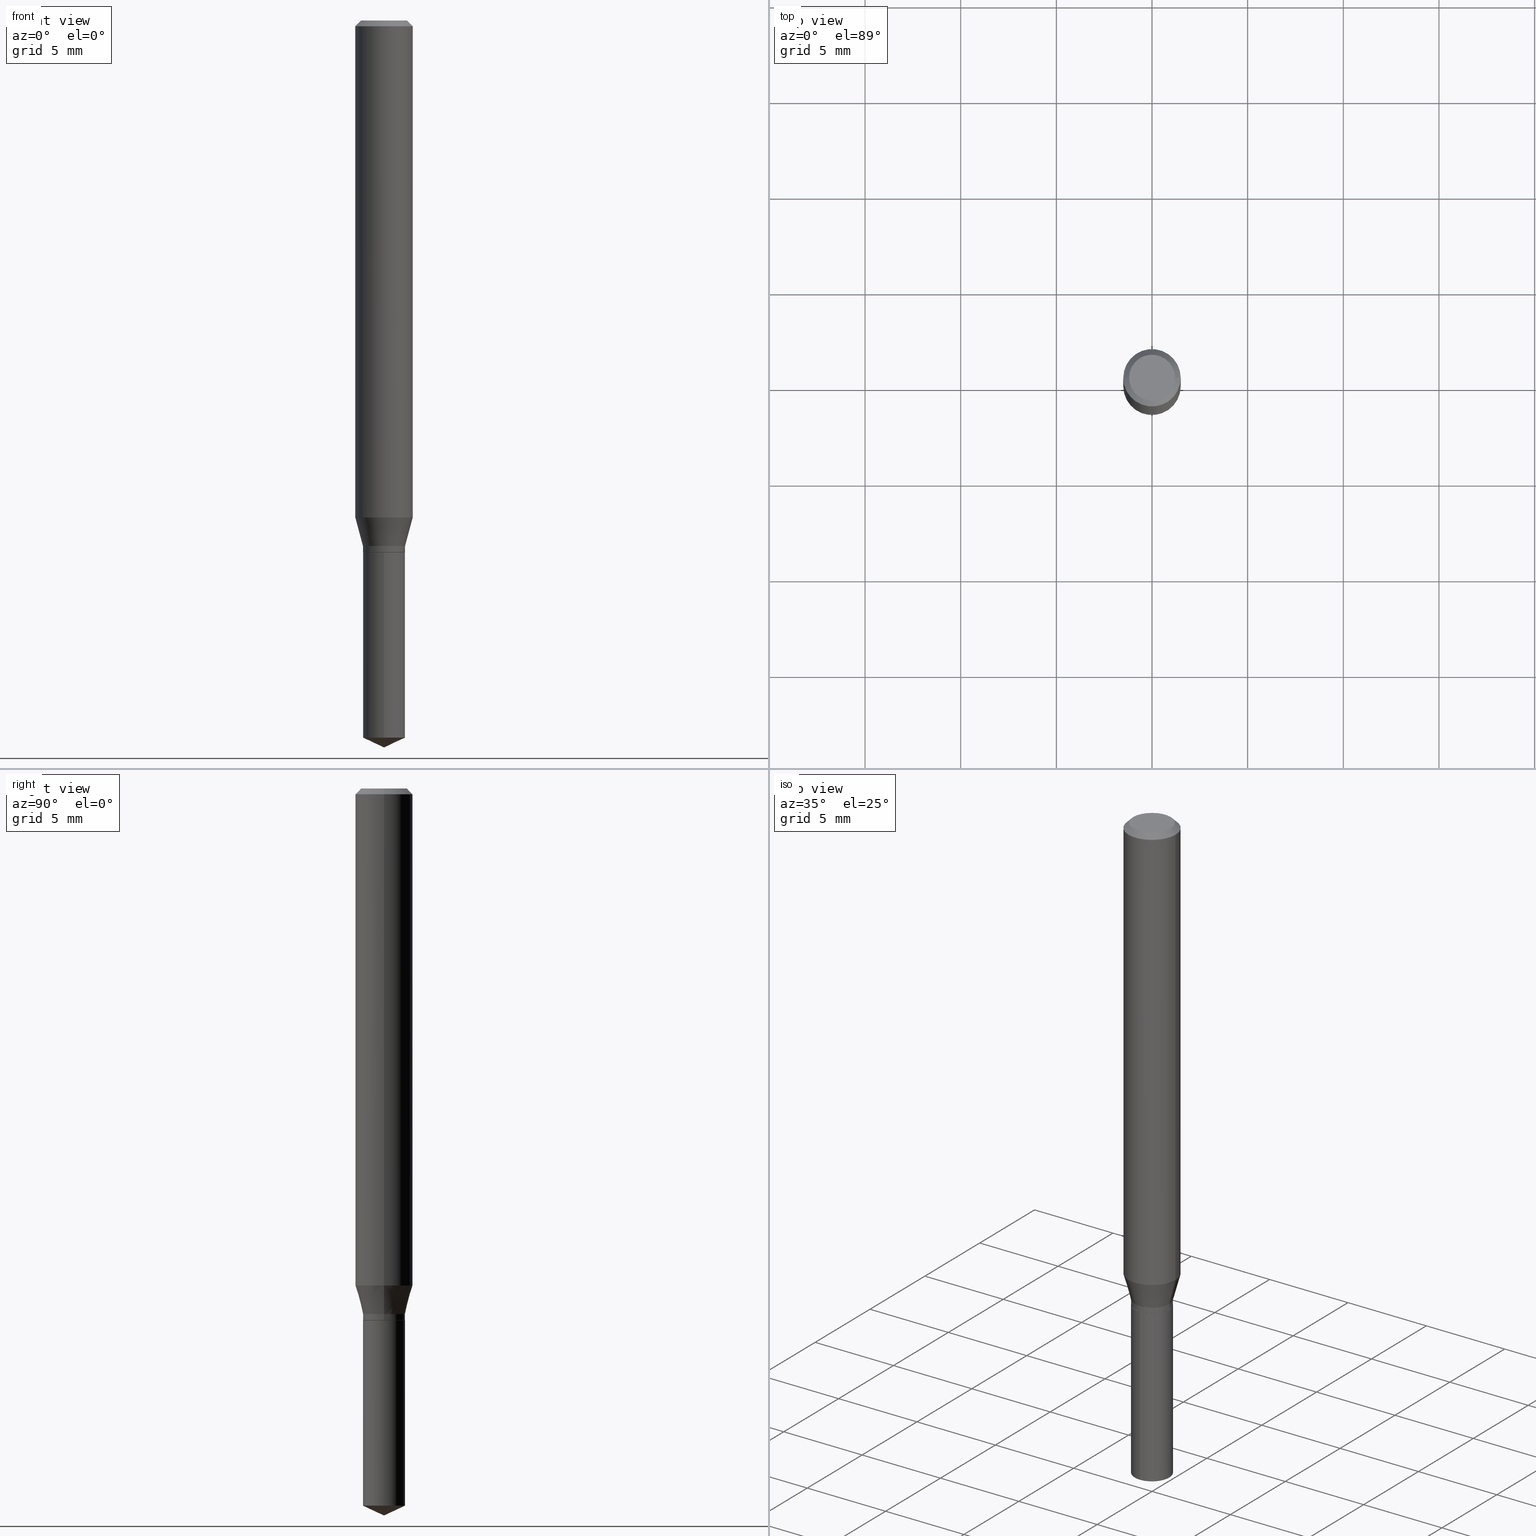
[diagram: canonical four-view strip — front | top / right | iso, engineering-drawing reading convention]
A machine part, canonical four-view strip (front | top / right | iso — engineering-drawing reading convention). The complete STEP part file that produces these views, byte-faithful:
ISO-10303-21;
HEADER;
FILE_DESCRIPTION (( 'STEP AP203' ),
    '1' );
FILE_NAME ('07968.STEP',
    '2024-04-24T07:32:38',
    ( '' ),
    ( '' ),
    'SwSTEP 2.0',
    'SolidWorks 2023',
    '' );
FILE_SCHEMA (( 'CONFIG_CONTROL_DESIGN' ));
ENDSEC;

DATA;
#1 = ORIENTED_EDGE ( 'NONE', *, *, #19, .T. ) ;
#2 = FACE_OUTER_BOUND ( 'NONE', #75, .T. ) ;
#3 = AXIS2_PLACEMENT_3D ( 'NONE', #193, #120, #89 ) ;
#4 = CARTESIAN_POINT ( 'NONE',  ( 0.000000000000000000, 0.000000000000000000, 0.000000000000000000 ) ) ;
#5 = PERSON_AND_ORGANIZATION ( #371, #475 ) ;
#6 = CC_DESIGN_PERSON_AND_ORGANIZATION_ASSIGNMENT ( #81, #344, ( #136 ) ) ;
#7 = FACE_OUTER_BOUND ( 'NONE', #115, .T. ) ;
#8 = SHAPE_DEFINITION_REPRESENTATION ( #88, #472 ) ;
#9 = DIRECTION ( 'NONE',  ( -1.000000000000000000, 6.982962677686265922E-15, -4.876176775795935793E-29 ) ) ;
#10 = CARTESIAN_POINT ( 'NONE',  ( 0.04329999999999999127, -4.078399351902677565E-15, -1.081499999999999906 ) ) ;
#11 = DATE_AND_TIME ( #259, #146 ) ;
#12 = EDGE_CURVE ( 'NONE', #108, #65, #156, .T. ) ;
#13 = DIRECTION ( 'NONE',  ( -2.445458899330790108E-29, 3.491495526022433205E-15, 1.000000000000000000 ) ) ;
#14 = SECURITY_CLASSIFICATION_LEVEL ( 'unclassified' ) ;
#15 = CARTESIAN_POINT ( 'NONE',  ( -0.05904999999999999832, 3.711095515056362547E-16, -0.01181000000000007565 ) ) ;
#16 = DIRECTION ( 'NONE',  ( 1.000000000000000000, -6.982962677686269077E-15, 0.000000000000000000 ) ) ;
#17 = APPROVAL_ROLE ( '' ) ;
#18 = CARTESIAN_POINT ( 'NONE',  ( -3.023622839437885423E-16, -0.04330000000000382154, -1.094499999999999806 ) ) ;
#19 = EDGE_CURVE ( 'NONE', #362, #300, #124, .T. ) ;
#20 = DIRECTION ( 'NONE',  ( -2.438088387897960049E-29, 3.491481338843145188E-15, 1.000000000000000000 ) ) ;
#21 = AXIS2_PLACEMENT_3D ( 'NONE', #36, #155, #122 ) ;
#22 = CIRCLE ( 'NONE', #94, 0.05905000000000013016 ) ;
#23 = LINE ( 'NONE', #316, #113 ) ;
#24 = VERTEX_POINT ( 'NONE', #10 ) ;
#25 = DIRECTION ( 'NONE',  ( -2.445458899330790108E-29, 3.491495526022433599E-15, 1.000000000000000000 ) ) ;
#26 = EDGE_CURVE ( 'NONE', #435, #177, #450, .T. ) ;
#27 = ORIENTED_EDGE ( 'NONE', *, *, #342, .T. ) ;
#28 = AXIS2_PLACEMENT_3D ( 'NONE', #123, #262, #48 ) ;
#29 = DIRECTION ( 'NONE',  ( -2.445468806185136877E-29, 3.491481338843145188E-15, 1.000000000000000000 ) ) ;
#30 = ORIENTED_EDGE ( 'NONE', *, *, #252, .T. ) ;
#31 = ORIENTED_EDGE ( 'NONE', *, *, #267, .T. ) ;
#32 = ORIENTED_EDGE ( 'NONE', *, *, #305, .T. ) ;
#33 = VECTOR ( 'NONE', #29, 39.37007874015748143 ) ;
#34 = ORIENTED_EDGE ( 'NONE', *, *, #12, .F. ) ;
#35 = ORIENTED_EDGE ( 'NONE', *, *, #196, .F. ) ;
#36 = CARTESIAN_POINT ( 'NONE',  ( -9.261924752013118283E-28, 1.322368428517963298E-13, 37.87397874015748300 ) ) ;
#37 = COORDINATED_UNIVERSAL_TIME_OFFSET ( 5, 0, .BEHIND. ) ;
#38 = APPROVAL ( #270, 'UNSPECIFIED' ) ;
#39 = CARTESIAN_POINT ( 'NONE',  ( 3.076650045841500411E-16, 0.04329999999999616794, -1.094500000000000028 ) ) ;
#40 = CONICAL_SURFACE ( 'NONE', #21, 84.42940631927434936, 1.134464013796316006 ) ;
#41 = CIRCLE ( 'NONE', #359, 0.04724000000000000421 ) ;
#42 = DIRECTION ( 'NONE',  ( -6.982962677686265922E-15, -1.000000000000000000, 6.309117768277745325E-15 ) ) ;
#43 = DIRECTION ( 'NONE',  ( -1.000000000000000000, 6.982962677686266711E-15, 0.000000000000000000 ) ) ;
#44 = COORDINATED_UNIVERSAL_TIME_OFFSET ( 5, 0, .BEHIND. ) ;
#45 = ADVANCED_FACE ( 'NONE', ( #200 ), #437, .T. ) ;
#46 = ORIENTED_EDGE ( 'NONE', *, *, #267, .F. ) ;
#47 = DATE_AND_TIME ( #234, #74 ) ;
#48 = DIRECTION ( 'NONE',  ( -1.000000000000000000, 6.982962677686266711E-15, 0.000000000000000000 ) ) ;
#49 = DIRECTION ( 'NONE',  ( 1.000000000000000000, -6.982962677686269866E-15, 0.000000000000000000 ) ) ;
#50 = AXIS2_PLACEMENT_3D ( 'NONE', #357, #469, #49 ) ;
#51 = LINE ( 'NONE', #105, #151 ) ;
#52 = CYLINDRICAL_SURFACE ( 'NONE', #430, 0.04329999999999999127 ) ;
#53 = FACE_OUTER_BOUND ( 'NONE', #317, .T. ) ;
#54 = ADVANCED_FACE ( 'NONE', ( #260 ), #197, .T. ) ;
#55 = ORIENTED_EDGE ( 'NONE', *, *, #434, .F. ) ;
#56 = DIRECTION ( 'NONE',  ( -6.982962677686265922E-15, -1.000000000000000000, 3.154558884138872662E-15 ) ) ;
#57 = PLANE ( 'NONE',  #82 ) ;
#58 = ORIENTED_EDGE ( 'NONE', *, *, #329, .F. ) ;
#59 = DIRECTION ( 'NONE',  ( 0.000000000000000000, 0.000000000000000000, 1.000000000000000000 ) ) ;
#60 = CARTESIAN_POINT ( 'NONE',  ( 0.05905000000000013016, -3.983152438509936021E-15, -1.022720199780789763 ) ) ;
#61 = CIRCLE ( 'NONE', #319, 0.05905000000000013016 ) ;
#62 = VECTOR ( 'NONE', #416, 39.37007874015748854 ) ;
#63 = DIRECTION ( 'NONE',  ( 1.000000000000000000, -6.982962677686269866E-15, 0.000000000000000000 ) ) ;
#64 = ADVANCED_FACE ( 'NONE', ( #84 ), #229, .T. ) ;
#65 = VERTEX_POINT ( 'NONE', #306 ) ;
#66 = APPROVAL_PERSON_ORGANIZATION ( #337, #288, #17 ) ;
#67 = ORIENTED_EDGE ( 'NONE', *, *, #394, .T. ) ;
#68 = CC_DESIGN_PERSON_AND_ORGANIZATION_ASSIGNMENT ( #5, #227, ( #176 ) ) ;
#69 = ORIENTED_EDGE ( 'NONE', *, *, #406, .F. ) ;
#70 = CARTESIAN_POINT ( 'NONE',  ( 3.658672935554494692E-29, -5.223595400746700193E-15, -1.496099999999999985 ) ) ;
#71 = ORIENTED_EDGE ( 'NONE', *, *, #186, .F. ) ;
#72 = AXIS2_PLACEMENT_3D ( 'NONE', #4, #162, #377 ) ;
#73 = CONICAL_SURFACE ( 'NONE', #347, 0.05904999999999999832, 0.7853981633974450594 ) ;
#74 = LOCAL_TIME ( 3, 32, 38.00000000000000000, #167 ) ;
#75 = EDGE_LOOP ( 'NONE', ( #248, #413, #490, #404 ) ) ;
#76 = ADVANCED_FACE ( 'NONE', ( #334 ), #73, .T. ) ;
#77 = CARTESIAN_POINT ( 'NONE',  ( 0.000000000000000000, 0.000000000000000000, 0.000000000000000000 ) ) ;
#78 = CALENDAR_DATE ( 2024, 24, 4 ) ;
#79 = DESIGN_CONTEXT ( 'detailed design', #323, 'design' ) ;
#80 = CARTESIAN_POINT ( 'NONE',  ( 3.609285344341305369E-29, -5.153113717889251139E-15, -1.475908878401888558 ) ) ;
#81 = PERSON_AND_ORGANIZATION ( #371, #475 ) ;
#82 = AXIS2_PLACEMENT_3D ( 'NONE', #209, #20, #214 ) ;
#83 = CC_DESIGN_APPROVAL ( #38, ( #136 ) ) ;
#84 = FACE_OUTER_BOUND ( 'NONE', #110, .T. ) ;
#85 = COORDINATED_UNIVERSAL_TIME_OFFSET ( 5, 0, .BEHIND. ) ;
#86 = DIRECTION ( 'NONE',  ( 6.982962677686265922E-15, 1.000000000000000000, -3.491495526022433599E-15 ) ) ;
#87 = LINE ( 'NONE', #298, #297 ) ;
#88 = PRODUCT_DEFINITION_SHAPE ( 'NONE', 'NONE',  #136 ) ;
#89 = DIRECTION ( 'NONE',  ( 1.000000000000000000, -6.982962677686269077E-15, 0.000000000000000000 ) ) ;
#90 = PERSON_AND_ORGANIZATION ( #371, #475 ) ;
#91 = DIRECTION ( 'NONE',  ( 1.000000000000000000, -6.982962677686269077E-15, 0.000000000000000000 ) ) ;
#92 = DIRECTION ( 'NONE',  ( -2.445458899330790108E-29, 3.491495526022433205E-15, 1.000000000000000000 ) ) ;
#93 = FACE_OUTER_BOUND ( 'NONE', #233, .T. ) ;
#94 = AXIS2_PLACEMENT_3D ( 'NONE', #432, #240, #280 ) ;
#95 = LINE ( 'NONE', #352, #249 ) ;
#96 = APPROVAL_PERSON_ORGANIZATION ( #225, #383, #310 ) ;
#97 =( LENGTH_UNIT ( ) NAMED_UNIT ( * ) SI_UNIT ( $, .METRE. ) );
#98 = CARTESIAN_POINT ( 'NONE',  ( 3.609285344341305369E-29, -5.153113717889251139E-15, -1.475908878401888558 ) ) ;
#99 = ADVANCED_FACE ( 'NONE', ( #2 ), #273, .T. ) ;
#100 = DIRECTION ( 'NONE',  ( -2.445468806185136877E-29, 3.491481338843145188E-15, 1.000000000000000000 ) ) ;
#101 =( CONVERSION_BASED_UNIT ( 'INCH', #441 ) LENGTH_UNIT ( ) NAMED_UNIT ( #486 ) );
#102 = APPLICATION_CONTEXT ( 'configuration controlled 3d designs of mechanical parts and assemblies' ) ;
#103 = DIRECTION ( 'NONE',  ( 1.000000000000000000, -6.982962677686269866E-15, 0.000000000000000000 ) ) ;
#104 = ORIENTED_EDGE ( 'NONE', *, *, #434, .T. ) ;
#105 = CARTESIAN_POINT ( 'NONE',  ( -0.04279999999999998389, -3.517314034458499860E-15, -1.094500000000000028 ) ) ;
#106 = AXIS2_PLACEMENT_3D ( 'NONE', #461, #264, #312 ) ;
#107 = ADVANCED_FACE ( 'NONE', ( #7 ), #128, .T. ) ;
#108 = VERTEX_POINT ( 'NONE', #422 ) ;
#109 = MANIFOLD_SOLID_BREP ( 'Body-Move/Copy2[2]', #182 ) ;
#110 = EDGE_LOOP ( 'NONE', ( #35, #322, #152, #449 ) ) ;
#111 = ADVANCED_FACE ( 'NONE', ( #296 ), #40, .T. ) ;
#112 = EDGE_LOOP ( 'NONE', ( #442, #191, #208 ) ) ;
#113 = VECTOR ( 'NONE', #278, 39.37007874015748143 ) ;
#114 = DIRECTION ( 'NONE',  ( -2.445468806185136597E-29, 3.491481338843145583E-15, 1.000000000000000000 ) ) ;
#115 = EDGE_LOOP ( 'NONE', ( #407, #485, #254, #58 ) ) ;
#116 = EDGE_LOOP ( 'NONE', ( #474, #483 ) ) ;
#117 = ORIENTED_EDGE ( 'NONE', *, *, #342, .F. ) ;
#118 = CIRCLE ( 'NONE', #366, 0.05904999999999999832 ) ;
#119 = CC_DESIGN_PERSON_AND_ORGANIZATION_ASSIGNMENT ( #129, #415, ( #295 ) ) ;
#120 = DIRECTION ( 'NONE',  ( -2.445468806185136597E-29, 3.491481338843145583E-15, 1.000000000000000000 ) ) ;
#121 = CARTESIAN_POINT ( 'NONE',  ( 3.076650045841594582E-16, 0.04329999999999616794, -1.094500000000000028 ) ) ;
#122 = DIRECTION ( 'NONE',  ( -6.982962677686266711E-15, -1.000000000000000000, 3.520397390770453475E-15 ) ) ;
#123 = CARTESIAN_POINT ( 'NONE',  ( 2.888098660104664642E-31, -4.123439461173780879E-17, -0.01181000000000007565 ) ) ;
#124 = LINE ( 'NONE', #418, #372 ) ;
#125 = PERSON_AND_ORGANIZATION ( #371, #475 ) ;
#126 = FACE_OUTER_BOUND ( 'NONE', #365, .T. ) ;
#127 = AXIS2_PLACEMENT_3D ( 'NONE', #77, #378, #168 ) ;
#128 = CYLINDRICAL_SURFACE ( 'NONE', #194, 0.04329999999999999127 ) ;
#129 = PERSON_AND_ORGANIZATION ( #371, #475 ) ;
#130 = FACE_OUTER_BOUND ( 'NONE', #243, .T. ) ;
#131 = VERTEX_POINT ( 'NONE', #380 ) ;
#132 = APPROVAL_ROLE ( '' ) ;
#133 = DIRECTION ( 'NONE',  ( -2.445468806185136597E-29, 3.491481338843145583E-15, 1.000000000000000000 ) ) ;
#134 = ORIENTED_EDGE ( 'NONE', *, *, #203, .T. ) ;
#135 = DIRECTION ( 'NONE',  ( 1.000000000000000000, -6.982962677686266711E-15, 0.000000000000000000 ) ) ;
#136 = PRODUCT_DEFINITION ( 'UNKNOWN', '', #176, #79 ) ;
#137 = AXIS2_PLACEMENT_3D ( 'NONE', #396, #395, #283 ) ;
#138 = CARTESIAN_POINT ( 'NONE',  ( 2.676565608369632355E-29, -3.821426325363822773E-15, -1.094500000000000028 ) ) ;
#139 = VERTEX_POINT ( 'NONE', #453 ) ;
#140 = DIRECTION ( 'NONE',  ( -2.445468806185136597E-29, 3.491481338843145583E-15, 1.000000000000000000 ) ) ;
#141 = ORIENTED_EDGE ( 'NONE', *, *, #363, .T. ) ;
#142 = CARTESIAN_POINT ( 'NONE',  ( 0.05904999999999999832, -4.463468013801466955E-16, -0.01181000000000007565 ) ) ;
#143 = EDGE_CURVE ( 'NONE', #370, #131, #318, .T. ) ;
#144 = DIRECTION ( 'NONE',  ( -2.445468806185136597E-29, 3.491481338843145583E-15, 1.000000000000000000 ) ) ;
#145 = AXIS2_PLACEMENT_3D ( 'NONE', #364, #144, #242 ) ;
#146 = LOCAL_TIME ( 3, 32, 38.00000000000000000, #37 ) ;
#147 = ORIENTED_EDGE ( 'NONE', *, *, #186, .T. ) ;
#148 = ORIENTED_EDGE ( 'NONE', *, *, #203, .F. ) ;
#149 = CARTESIAN_POINT ( 'NONE',  ( 2.675342873966538993E-29, -3.819680584694400481E-15, -1.093999999999999861 ) ) ;
#150 = ORIENTED_EDGE ( 'NONE', *, *, #335, .F. ) ;
#151 = VECTOR ( 'NONE', #402, 39.37007874015748854 ) ;
#152 = ORIENTED_EDGE ( 'NONE', *, *, #335, .T. ) ;
#153 = EDGE_LOOP ( 'NONE', ( #217, #446 ) ) ;
#154 = ADVANCED_FACE ( 'NONE', ( #387 ), #345, .T. ) ;
#155 = DIRECTION ( 'NONE',  ( -2.445458899330790108E-29, 3.491495526022433205E-15, 1.000000000000000000 ) ) ;
#156 = CIRCLE ( 'NONE', #281, 0.05904999999999999832 ) ;
#157 = CARTESIAN_POINT ( 'NONE',  ( 2.644774513889225122E-29, -3.776037067958862103E-15, -1.081499999999999906 ) ) ;
#158 = PERSON_AND_ORGANIZATION_ROLE ( 'classification_officer' ) ;
#159 = ADVANCED_FACE ( 'NONE', ( #466 ), #414, .T. ) ;
#160 = EDGE_LOOP ( 'NONE', ( #46, #180, #104, #328 ) ) ;
#161 = DIRECTION ( 'NONE',  ( -2.445458899330790108E-29, 3.491495526022433205E-15, 1.000000000000000000 ) ) ;
#162 = DIRECTION ( 'NONE',  ( -2.445468806185136597E-29, 3.491481338843145583E-15, 1.000000000000000000 ) ) ;
#163 = FACE_OUTER_BOUND ( 'NONE', #153, .T. ) ;
#164 = AXIS2_PLACEMENT_3D ( 'NONE', #80, #92, #42 ) ;
#165 = VECTOR ( 'NONE', #457, 39.37007874015748854 ) ;
#166 = CARTESIAN_POINT ( 'NONE',  ( 0.000000000000000000, 0.000000000000000000, 0.000000000000000000 ) ) ;
#167 = COORDINATED_UNIVERSAL_TIME_OFFSET ( 5, 0, .BEHIND. ) ;
#168 = DIRECTION ( 'NONE',  ( 1.000000000000000000, -6.982962677686266711E-15, 4.876176775795936353E-29 ) ) ;
#169 = DATE_AND_TIME ( #78, #351 ) ;
#170 = LINE ( 'NONE', #311, #165 ) ;
#171 = EDGE_CURVE ( 'NONE', #250, #285, #61, .T. ) ;
#172 = CARTESIAN_POINT ( 'NONE',  ( -0.05905000000000006771, 4.195754854663396409E-16, -2.904631170795525045E-30 ) ) ;
#173 = AXIS2_PLACEMENT_3D ( 'NONE', #343, #336, #456 ) ;
#174 = CIRCLE ( 'NONE', #392, 0.04329999999999999127 ) ;
#175 = CARTESIAN_POINT ( 'NONE',  ( 8.265746106709734507E-48, -1.180129479067563789E-33, -3.380025165646692144E-19 ) ) ;
#176 = PRODUCT_DEFINITION_FORMATION_WITH_SPECIFIED_SOURCE ( 'ANY', '', #295, .NOT_KNOWN. ) ;
#177 = VERTEX_POINT ( 'NONE', #428 ) ;
#178 =( NAMED_UNIT ( * ) SI_UNIT ( $, .STERADIAN. ) SOLID_ANGLE_UNIT ( ) );
#179 = DIRECTION ( 'NONE',  ( -2.445468806185136597E-29, 3.491481338843145583E-15, 1.000000000000000000 ) ) ;
#180 = ORIENTED_EDGE ( 'NONE', *, *, #190, .F. ) ;
#181 = CARTESIAN_POINT ( 'NONE',  ( 0.05905000000000006771, -4.123439461173745257E-16, 2.879382386107503723E-30 ) ) ;
#182 = CLOSED_SHELL ( 'NONE', ( #241, #482, #159, #45, #54, #154, #99, #64, #76, #368, #299, #468 ) ) ;
#183 = AXIS2_PLACEMENT_3D ( 'NONE', #207, #237, #63 ) ;
#184 = VERTEX_POINT ( 'NONE', #18 ) ;
#185 = ORIENTED_EDGE ( 'NONE', *, *, #363, .F. ) ;
#186 = EDGE_CURVE ( 'NONE', #131, #370, #228, .T. ) ;
#187 = EDGE_LOOP ( 'NONE', ( #219, #440, #290 ) ) ;
#188 = ORIENTED_EDGE ( 'NONE', *, *, #376, .F. ) ;
#189 = APPROVAL_PERSON_ORGANIZATION ( #90, #38, #132 ) ;
#190 = EDGE_CURVE ( 'NONE', #367, #481, #41, .T. ) ;
#191 = ORIENTED_EDGE ( 'NONE', *, *, #410, .T. ) ;
#192 = CARTESIAN_POINT ( 'NONE',  ( 2.888098660104664642E-31, -4.123439461173780879E-17, -0.01181000000000007565 ) ) ;
#193 = CARTESIAN_POINT ( 'NONE',  ( 2.676565608369632355E-29, -3.821426325363822773E-15, -1.094500000000000028 ) ) ;
#194 = AXIS2_PLACEMENT_3D ( 'NONE', #224, #13, #265 ) ;
#195 = DIRECTION ( 'NONE',  ( -2.445458899330790108E-29, 3.491495526022433599E-15, 1.000000000000000000 ) ) ;
#196 = EDGE_CURVE ( 'NONE', #250, #65, #324, .T. ) ;
#197 = CYLINDRICAL_SURFACE ( 'NONE', #173, 0.04329999999999999127 ) ;
#198 = DATE_AND_TIME ( #301, #360 ) ;
#199 = CARTESIAN_POINT ( 'NONE',  ( 2.644774513889225122E-29, -3.776037067958862103E-15, -1.081499999999999906 ) ) ;
#200 = FACE_OUTER_BOUND ( 'NONE', #287, .T. ) ;
#201 = DATE_AND_TIME ( #388, #291 ) ;
#202 = AXIS2_PLACEMENT_3D ( 'NONE', #386, #431, #9 ) ;
#203 = EDGE_CURVE ( 'NONE', #294, #24, #95, .T. ) ;
#204 = CARTESIAN_POINT ( 'NONE',  ( -3.023622839437885423E-16, -0.04330000000000382154, -1.094499999999999806 ) ) ;
#205 = APPROVAL_DATE_TIME ( #198, #383 ) ;
#206 = CARTESIAN_POINT ( 'NONE',  ( 2.676565608369632355E-29, -3.821426325363822773E-15, -1.094500000000000028 ) ) ;
#207 = CARTESIAN_POINT ( 'NONE',  ( 2.644774513889225122E-29, -3.776037067958862103E-15, -1.081499999999999906 ) ) ;
#208 = ORIENTED_EDGE ( 'NONE', *, *, #26, .F. ) ;
#209 = CARTESIAN_POINT ( 'NONE',  ( 2.374170476497901664E-30, -7.314425892029170306E-15, -1.094500000000000028 ) ) ;
#210 = DIRECTION ( 'NONE',  ( 1.000000000000000000, 0.000000000000000000, 0.000000000000000000 ) ) ;
#211 = PRODUCT_RELATED_PRODUCT_CATEGORY ( 'detail', '', ( #295 ) ) ;
#212 = AXIS2_PLACEMENT_3D ( 'NONE', #199, #226, #303 ) ;
#213 = CIRCLE ( 'NONE', #308, 0.04329999999999999127 ) ;
#214 = DIRECTION ( 'NONE',  ( 1.000000000000000000, -6.982962677686265922E-15, 4.876176775795935793E-29 ) ) ;
#215 = LINE ( 'NONE', #204, #326 ) ;
#216 = EDGE_CURVE ( 'NONE', #139, #435, #23, .T. ) ;
#217 = ORIENTED_EDGE ( 'NONE', *, *, #400, .T. ) ;
#218 = EDGE_LOOP ( 'NONE', ( #251, #32, #185, #429 ) ) ;
#219 = ORIENTED_EDGE ( 'NONE', *, *, #410, .F. ) ;
#220 = DIRECTION ( 'NONE',  ( 1.000000000000000000, -6.982962677686269866E-15, 0.000000000000000000 ) ) ;
#221 = ORIENTED_EDGE ( 'NONE', *, *, #143, .F. ) ;
#222 = CIRCLE ( 'NONE', #282, 0.04329999999999999127 ) ;
#223 = ORIENTED_EDGE ( 'NONE', *, *, #247, .T. ) ;
#224 = CARTESIAN_POINT ( 'NONE',  ( 2.676565608369631794E-29, -3.821426325363822773E-15, -1.094499999999999806 ) ) ;
#225 = PERSON_AND_ORGANIZATION ( #371, #475 ) ;
#226 = DIRECTION ( 'NONE',  ( -2.445468806185136597E-29, 3.491481338843145583E-15, 1.000000000000000000 ) ) ;
#227 = PERSON_AND_ORGANIZATION_ROLE ( 'design_supplier' ) ;
#228 = CIRCLE ( 'NONE', #350, 0.04279999999999998389 ) ;
#229 = CYLINDRICAL_SURFACE ( 'NONE', #72, 0.05905000000000006771 ) ;
#230 = APPROVAL_DATE_TIME ( #169, #38 ) ;
#231 = DIRECTION ( 'NONE',  ( -2.445458899330790108E-29, 3.491495526022433205E-15, 1.000000000000000000 ) ) ;
#232 = CARTESIAN_POINT ( 'NONE',  ( -0.04329999999999999127, -3.490193821742507875E-15, -1.093999999999999861 ) ) ;
#233 = EDGE_LOOP ( 'NONE', ( #397, #31, #279, #55 ) ) ;
#234 = CALENDAR_DATE ( 2024, 24, 4 ) ;
#235 = CARTESIAN_POINT ( 'NONE',  ( 0.04279999999999998389, -4.120297127968795228E-15, -1.094500000000000028 ) ) ;
#236 = EDGE_CURVE ( 'NONE', #481, #367, #412, .T. ) ;
#237 = DIRECTION ( 'NONE',  ( -2.445468806185136597E-29, 3.491481338843145583E-15, 1.000000000000000000 ) ) ;
#238 = CONICAL_SURFACE ( 'NONE', #28, 0.05904999999999999832, 0.7853981633974450594 ) ;
#239 = DIRECTION ( 'NONE',  ( -2.445468806185136597E-29, 3.491481338843145583E-15, 1.000000000000000000 ) ) ;
#240 = DIRECTION ( 'NONE',  ( -2.445468806185136597E-29, 3.491481338843145583E-15, 1.000000000000000000 ) ) ;
#241 = ADVANCED_FACE ( 'NONE', ( #473 ), #463, .T. ) ;
#242 = DIRECTION ( 'NONE',  ( 1.000000000000000000, -6.982962677686266711E-15, 4.876185090822587894E-29 ) ) ;
#243 = EDGE_LOOP ( 'NONE', ( #403, #67, #253, #188 ) ) ;
#244 = CLOSED_SHELL ( 'NONE', ( #107, #111, #284, #448, #427 ) ) ;
#245 = VECTOR ( 'NONE', #272, 39.37007874015748143 ) ;
#246 = DIRECTION ( 'NONE',  ( 1.000000000000000000, -6.982962677686265133E-15, 0.000000000000000000 ) ) ;
#247 = EDGE_CURVE ( 'NONE', #300, #250, #470, .T. ) ;
#248 = ORIENTED_EDGE ( 'NONE', *, *, #247, .F. ) ;
#249 = VECTOR ( 'NONE', #100, 39.37007874015748143 ) ;
#250 = VERTEX_POINT ( 'NONE', #320 ) ;
#251 = ORIENTED_EDGE ( 'NONE', *, *, #143, .T. ) ;
#252 = EDGE_CURVE ( 'NONE', #24, #300, #174, .T. ) ;
#253 = ORIENTED_EDGE ( 'NONE', *, *, #329, .T. ) ;
#254 = ORIENTED_EDGE ( 'NONE', *, *, #400, .F. ) ;
#255 = AXIS2_PLACEMENT_3D ( 'NONE', #206, #271, #91 ) ;
#256 = DIRECTION ( 'NONE',  ( 1.000000000000000000, -6.982962677686267499E-15, 4.876176775795936353E-29 ) ) ;
#257 = CC_DESIGN_PERSON_AND_ORGANIZATION_ASSIGNMENT ( #423, #158, ( #452 ) ) ;
#258 = DIRECTION ( 'NONE',  ( -2.445468806185136597E-29, 3.491481338843145583E-15, 1.000000000000000000 ) ) ;
#259 = CALENDAR_DATE ( 2024, 24, 4 ) ;
#260 = FACE_OUTER_BOUND ( 'NONE', #447, .T. ) ;
#261 = PERSON_AND_ORGANIZATION_ROLE ( 'creator' ) ;
#262 = DIRECTION ( 'NONE',  ( 2.445468806185136597E-29, -3.491481338843145583E-15, -1.000000000000000000 ) ) ;
#263 = CIRCLE ( 'NONE', #106, 0.04329999999999999127 ) ;
#264 = DIRECTION ( 'NONE',  ( -2.445458899330790108E-29, 3.491495526022433205E-15, 1.000000000000000000 ) ) ;
#265 = DIRECTION ( 'NONE',  ( -6.982962677686265922E-15, -1.000000000000000000, 3.154558884138872662E-15 ) ) ;
#266 = CARTESIAN_POINT ( 'NONE',  ( 2.676565608369631794E-29, -3.821426325363822773E-15, -1.094499999999999806 ) ) ;
#267 = EDGE_CURVE ( 'NONE', #481, #108, #478, .T. ) ;
#268 = DIRECTION ( 'NONE',  ( -2.445458899330790108E-29, 3.491495526022433205E-15, 1.000000000000000000 ) ) ;
#269 = DIRECTION ( 'NONE',  ( -2.445468806185136877E-29, 3.491481338843145188E-15, 1.000000000000000000 ) ) ;
#270 = APPROVAL_STATUS ( 'not_yet_approved' ) ;
#271 = DIRECTION ( 'NONE',  ( -2.445468806185136597E-29, 3.491481338843145583E-15, 1.000000000000000000 ) ) ;
#272 = DIRECTION ( 'NONE',  ( 0.7071067811865452413, -7.319954787623248157E-15, -0.7071067811865497932 ) ) ;
#273 = CONICAL_SURFACE ( 'NONE', #348, 0.04329999999999999127, 0.2617993877991497964 ) ;
#274 =( GEOMETRIC_REPRESENTATION_CONTEXT ( 3 ) GLOBAL_UNCERTAINTY_ASSIGNED_CONTEXT ( ( #314 ) ) GLOBAL_UNIT_ASSIGNED_CONTEXT ( ( #101, #355, #178 ) ) REPRESENTATION_CONTEXT ( 'NONE', 'WORKASPACE' ) );
#275 = CC_DESIGN_APPROVAL ( #383, ( #452 ) ) ;
#276 = EDGE_CURVE ( 'NONE', #285, #250, #22, .T. ) ;
#277 = CARTESIAN_POINT ( 'NONE',  ( 2.644774513889225122E-29, -3.776037067958862103E-15, -1.081499999999999906 ) ) ;
#278 = DIRECTION ( 'NONE',  ( -6.328713451373374901E-15, -0.9063077870366492705, 0.4226182617407009956 ) ) ;
#279 = ORIENTED_EDGE ( 'NONE', *, *, #12, .T. ) ;
#280 = DIRECTION ( 'NONE',  ( 1.000000000000000000, -6.982962677686265133E-15, 0.000000000000000000 ) ) ;
#281 = AXIS2_PLACEMENT_3D ( 'NONE', #192, #420, #459 ) ;
#282 = AXIS2_PLACEMENT_3D ( 'NONE', #149, #114, #220 ) ;
#283 = DIRECTION ( 'NONE',  ( -6.982962677686266711E-15, -1.000000000000000000, 3.520397390770453475E-15 ) ) ;
#284 = ADVANCED_FACE ( 'NONE', ( #433 ), #289, .T. ) ;
#285 = VERTEX_POINT ( 'NONE', #60 ) ;
#286 = APPLICATION_PROTOCOL_DEFINITION ( 'international standard', 'config_control_design', 1994, #102 ) ;
#287 = EDGE_LOOP ( 'NONE', ( #30, #223, #374, #69 ) ) ;
#288 = APPROVAL ( #419, 'UNSPECIFIED' ) ;
#289 = CONICAL_SURFACE ( 'NONE', #137, 84.42940631927434936, 1.134464013796316006 ) ;
#290 = ORIENTED_EDGE ( 'NONE', *, *, #394, .F. ) ;
#291 = LOCAL_TIME ( 3, 32, 38.00000000000000000, #44 ) ;
#292 = LINE ( 'NONE', #39, #331 ) ;
#293 = ORIENTED_EDGE ( 'NONE', *, *, #276, .T. ) ;
#294 = VERTEX_POINT ( 'NONE', #439 ) ;
#295 = PRODUCT ( '07968', '07968', '', ( #443 ) ) ;
#296 = FACE_OUTER_BOUND ( 'NONE', #112, .T. ) ;
#297 = VECTOR ( 'NONE', #454, 39.37007874015748143 ) ;
#298 = CARTESIAN_POINT ( 'NONE',  ( 0.04329999999999999127, -4.078399351902677565E-15, -1.081499999999999906 ) ) ;
#299 = ADVANCED_FACE ( 'NONE', ( #53 ), #57, .F. ) ;
#300 = VERTEX_POINT ( 'NONE', #436 ) ;
#301 = CALENDAR_DATE ( 2024, 24, 4 ) ;
#302 = CARTESIAN_POINT ( 'NONE',  ( 2.676565608369631794E-29, -3.821426325363822773E-15, -1.094499999999999806 ) ) ;
#303 = DIRECTION ( 'NONE',  ( 1.000000000000000000, -6.982962677686269866E-15, 0.000000000000000000 ) ) ;
#304 = DATE_TIME_ROLE ( 'creation_date' ) ;
#305 = EDGE_CURVE ( 'NONE', #131, #362, #51, .T. ) ;
#306 = CARTESIAN_POINT ( 'NONE',  ( -0.05904999999999999832, -1.386445958035808936E-15, -0.01181000000000007565 ) ) ;
#307 = DATE_TIME_ROLE ( 'classification_date' ) ;
#308 = AXIS2_PLACEMENT_3D ( 'NONE', #458, #161, #56 ) ;
#309 = DIRECTION ( 'NONE',  ( -2.445468806185136597E-29, 3.491481338843145583E-15, 1.000000000000000000 ) ) ;
#310 = APPROVAL_ROLE ( '' ) ;
#311 = CARTESIAN_POINT ( 'NONE',  ( 0.04279999999999998389, -4.120297127968795228E-15, -1.094500000000000028 ) ) ;
#312 = DIRECTION ( 'NONE',  ( -6.982962677686265922E-15, -1.000000000000000000, 3.154558884138872662E-15 ) ) ;
#313 = DIRECTION ( 'NONE',  ( -2.445468806185136597E-29, 3.491481338843145583E-15, 1.000000000000000000 ) ) ;
#314 = UNCERTAINTY_MEASURE_WITH_UNIT (LENGTH_MEASURE( 1.000000000000000082E-05 ), #101, 'distance_accuracy_value', 'NONE');
#315 = CARTESIAN_POINT ( 'NONE',  ( -0.04724000000000000421, 3.504923541997677355E-16, -3.380025165670481712E-19 ) ) ;
#316 = CARTESIAN_POINT ( 'NONE',  ( 3.658651059288795076E-29, -5.223626456482161457E-15, -1.496099999999999985 ) ) ;
#317 = EDGE_LOOP ( 'NONE', ( #221, #71 ) ) ;
#318 = CIRCLE ( 'NONE', #3, 0.04279999999999998389 ) ;
#319 = AXIS2_PLACEMENT_3D ( 'NONE', #477, #313, #246 ) ;
#320 = CARTESIAN_POINT ( 'NONE',  ( -0.05905000000000013016, -3.151233006926221213E-15, -1.022720199780789763 ) ) ;
#321 = DIRECTION ( 'NONE',  ( -2.445468806185136877E-29, 3.491481338843145188E-15, 1.000000000000000000 ) ) ;
#322 = ORIENTED_EDGE ( 'NONE', *, *, #171, .T. ) ;
#323 = APPLICATION_CONTEXT ( 'configuration controlled 3d designs of mechanical parts and assemblies' ) ;
#324 = LINE ( 'NONE', #172, #338 ) ;
#325 = EDGE_CURVE ( 'NONE', #300, #24, #421, .T. ) ;
#326 = VECTOR ( 'NONE', #25, 39.37007874015748143 ) ;
#327 = ORIENTED_EDGE ( 'NONE', *, *, #305, .F. ) ;
#328 = ORIENTED_EDGE ( 'NONE', *, *, #489, .T. ) ;
#329 = EDGE_CURVE ( 'NONE', #435, #184, #215, .T. ) ;
#330 = ORIENTED_EDGE ( 'NONE', *, *, #19, .F. ) ;
#331 = VECTOR ( 'NONE', #195, 39.37007874015748143 ) ;
#332 = EDGE_LOOP ( 'NONE', ( #330, #27, #134, #333 ) ) ;
#333 = ORIENTED_EDGE ( 'NONE', *, *, #325, .F. ) ;
#334 = FACE_OUTER_BOUND ( 'NONE', #160, .T. ) ;
#335 = EDGE_CURVE ( 'NONE', #285, #108, #354, .T. ) ;
#336 = DIRECTION ( 'NONE',  ( -2.445468806185136597E-29, 3.491481338843145583E-15, 1.000000000000000000 ) ) ;
#337 = PERSON_AND_ORGANIZATION ( #371, #475 ) ;
#338 = VECTOR ( 'NONE', #321, 39.37007874015748143 ) ;
#339 = ORIENTED_EDGE ( 'NONE', *, *, #196, .T. ) ;
#340 = CARTESIAN_POINT ( 'NONE',  ( 2.888098660104664642E-31, -4.123439461173780879E-17, -0.01181000000000007565 ) ) ;
#341 = FACE_OUTER_BOUND ( 'NONE', #116, .T. ) ;
#342 = EDGE_CURVE ( 'NONE', #362, #294, #222, .T. ) ;
#343 = CARTESIAN_POINT ( 'NONE',  ( 0.000000000000000000, 0.000000000000000000, 0.000000000000000000 ) ) ;
#344 = PERSON_AND_ORGANIZATION_ROLE ( 'creator' ) ;
#345 = CYLINDRICAL_SURFACE ( 'NONE', #487, 0.04329999999999999127 ) ;
#346 = APPROVAL_DATE_TIME ( #201, #288 ) ;
#347 = AXIS2_PLACEMENT_3D ( 'NONE', #425, #384, #43 ) ;
#348 = AXIS2_PLACEMENT_3D ( 'NONE', #157, #258, #462 ) ;
#349 = CARTESIAN_POINT ( 'NONE',  ( -3.023622839437791746E-16, -0.04330000000000513993, -1.475908878401888336 ) ) ;
#350 = AXIS2_PLACEMENT_3D ( 'NONE', #361, #239, #391 ) ;
#351 = LOCAL_TIME ( 3, 32, 38.00000000000000000, #85 ) ;
#352 = CARTESIAN_POINT ( 'NONE',  ( 0.04329999999999999127, -3.023622839438153143E-16, 2.111384543919639926E-30 ) ) ;
#353 = PLANE ( 'NONE',  #373 ) ;
#354 = LINE ( 'NONE', #181, #33 ) ;
#355 =( NAMED_UNIT ( * ) PLANE_ANGLE_UNIT ( ) SI_UNIT ( $, .RADIAN. ) );
#356 = CC_DESIGN_PERSON_AND_ORGANIZATION_ASSIGNMENT ( #125, #261, ( #176 ) ) ;
#357 = CARTESIAN_POINT ( 'NONE',  ( 2.675342873966538993E-29, -3.819680584694400481E-15, -1.093999999999999861 ) ) ;
#358 = DIRECTION ( 'NONE',  ( -0.2588190451025211281, 5.211531920934548675E-15, 0.9659258262890682012 ) ) ;
#359 = AXIS2_PLACEMENT_3D ( 'NONE', #175, #140, #479 ) ;
#360 = LOCAL_TIME ( 3, 32, 38.00000000000000000, #379 ) ;
#361 = CARTESIAN_POINT ( 'NONE',  ( 2.676565608369632355E-29, -3.821426325363822773E-15, -1.094500000000000028 ) ) ;
#362 = VERTEX_POINT ( 'NONE', #232 ) ;
#363 = EDGE_CURVE ( 'NONE', #294, #362, #438, .T. ) ;
#364 = CARTESIAN_POINT ( 'NONE',  ( 8.265746106709734507E-48, -1.180129479067563789E-33, -3.380025165646692144E-19 ) ) ;
#365 = EDGE_LOOP ( 'NONE', ( #327, #147, #369, #117 ) ) ;
#366 = AXIS2_PLACEMENT_3D ( 'NONE', #340, #467, #135 ) ;
#367 = VERTEX_POINT ( 'NONE', #315 ) ;
#368 = ADVANCED_FACE ( 'NONE', ( #341 ), #471, .F. ) ;
#369 = ORIENTED_EDGE ( 'NONE', *, *, #455, .T. ) ;
#370 = VERTEX_POINT ( 'NONE', #235 ) ;
#371 = PERSON ( 'UNSPECIFIED', 'UNSPECIFIED', 'UNSPECIFIED', ('UNSPECIFIED'), ('UNSPECIFIED'), ('UNSPECIFIED') ) ;
#372 = VECTOR ( 'NONE', #269, 39.37007874015748143 ) ;
#373 = AXIS2_PLACEMENT_3D ( 'NONE', #266, #460, #86 ) ;
#374 = ORIENTED_EDGE ( 'NONE', *, *, #276, .F. ) ;
#375 = CC_DESIGN_APPROVAL ( #288, ( #176 ) ) ;
#376 = EDGE_CURVE ( 'NONE', #409, #184, #213, .T. ) ;
#377 = DIRECTION ( 'NONE',  ( 1.000000000000000000, -6.982962677686266711E-15, 4.876176775795936353E-29 ) ) ;
#378 = DIRECTION ( 'NONE',  ( -2.445468806185136597E-29, 3.491481338843145583E-15, 1.000000000000000000 ) ) ;
#379 = COORDINATED_UNIVERSAL_TIME_OFFSET ( 5, 0, .BEHIND. ) ;
#380 = CARTESIAN_POINT ( 'NONE',  ( -0.04279999999999998389, -3.514664807284389054E-15, -1.094500000000000028 ) ) ;
#381 = APPROVAL_STATUS ( 'not_yet_approved' ) ;
#382 = VECTOR ( 'NONE', #358, 39.37007874015748143 ) ;
#383 = APPROVAL ( #381, 'UNSPECIFIED' ) ;
#384 = DIRECTION ( 'NONE',  ( 2.445468806185136597E-29, -3.491481338843145583E-15, -1.000000000000000000 ) ) ;
#385 = APPLICATION_PROTOCOL_DEFINITION ( 'international standard', 'config_control_design', 1994, #323 ) ;
#386 = CARTESIAN_POINT ( 'NONE',  ( 4.132873053354867254E-48, -5.900647395337818946E-34, -1.690012582823346072E-19 ) ) ;
#387 = FACE_OUTER_BOUND ( 'NONE', #332, .T. ) ;
#388 = CALENDAR_DATE ( 2024, 24, 4 ) ;
#389 = CARTESIAN_POINT ( 'NONE',  ( 0.04724000000000000421, -3.852183633974369345E-16, -3.380025165621689721E-19 ) ) ;
#390 = DIRECTION ( 'NONE',  ( -6.982962677686265922E-15, -1.000000000000000000, 6.309117768277745325E-15 ) ) ;
#391 = DIRECTION ( 'NONE',  ( 1.000000000000000000, -6.982962677686269077E-15, 0.000000000000000000 ) ) ;
#392 = AXIS2_PLACEMENT_3D ( 'NONE', #277, #133, #103 ) ;
#393 = DIRECTION ( 'NONE',  ( -0.7071067811865452413, 2.468850131082233000E-15, -0.7071067811865497932 ) ) ;
#394 = EDGE_CURVE ( 'NONE', #177, #435, #488, .T. ) ;
#395 = DIRECTION ( 'NONE',  ( -2.445458899330790108E-29, 3.491495526022433205E-15, 1.000000000000000000 ) ) ;
#396 = CARTESIAN_POINT ( 'NONE',  ( -9.261924752013118283E-28, 1.322368428517963298E-13, 37.87397874015748300 ) ) ;
#397 = ORIENTED_EDGE ( 'NONE', *, *, #236, .F. ) ;
#398 = CARTESIAN_POINT ( 'NONE',  ( 0.000000000000000000, 0.000000000000000000, 0.000000000000000000 ) ) ;
#399 = CARTESIAN_POINT ( 'NONE',  ( -0.04329999999999999127, -3.468372063374738686E-15, -1.081499999999999906 ) ) ;
#400 = EDGE_CURVE ( 'NONE', #184, #409, #263, .T. ) ;
#401 = VECTOR ( 'NONE', #393, 39.37007874015748143 ) ;
#402 = DIRECTION ( 'NONE',  ( -0.7071067811864326647, 7.493145998869937642E-15, 0.7071067811866621478 ) ) ;
#403 = ORIENTED_EDGE ( 'NONE', *, *, #417, .F. ) ;
#404 = ORIENTED_EDGE ( 'NONE', *, *, #171, .F. ) ;
#405 = AXIS2_PLACEMENT_3D ( 'NONE', #398, #59, #210 ) ;
#406 = EDGE_CURVE ( 'NONE', #24, #285, #87, .T. ) ;
#407 = ORIENTED_EDGE ( 'NONE', *, *, #26, .T. ) ;
#408 = ORIENTED_EDGE ( 'NONE', *, *, #252, .F. ) ;
#409 = VERTEX_POINT ( 'NONE', #121 ) ;
#410 = EDGE_CURVE ( 'NONE', #139, #177, #484, .T. ) ;
#411 = AXIS2_PLACEMENT_3D ( 'NONE', #138, #179, #16 ) ;
#412 = CIRCLE ( 'NONE', #145, 0.04724000000000000421 ) ;
#413 = ORIENTED_EDGE ( 'NONE', *, *, #325, .T. ) ;
#414 = CYLINDRICAL_SURFACE ( 'NONE', #127, 0.05905000000000006771 ) ;
#415 = PERSON_AND_ORGANIZATION_ROLE ( 'design_owner' ) ;
#416 = DIRECTION ( 'NONE',  ( 6.439704144417030353E-15, 0.9063077870366521571, 0.4226182617406946673 ) ) ;
#417 = EDGE_CURVE ( 'NONE', #177, #409, #292, .T. ) ;
#418 = CARTESIAN_POINT ( 'NONE',  ( -0.04329999999999999127, 3.076650045841233185E-16, -2.129898894080373703E-30 ) ) ;
#419 = APPROVAL_STATUS ( 'not_yet_approved' ) ;
#420 = DIRECTION ( 'NONE',  ( -2.445468806185136597E-29, 3.491481338843145583E-15, 1.000000000000000000 ) ) ;
#421 = CIRCLE ( 'NONE', #183, 0.04329999999999999127 ) ;
#422 = CARTESIAN_POINT ( 'NONE',  ( 0.05904999999999999832, -4.535783407291118600E-16, -0.01181000000000007565 ) ) ;
#423 = PERSON_AND_ORGANIZATION ( #371, #475 ) ;
#424 = DIRECTION ( 'NONE',  ( -6.982962677686265922E-15, -1.000000000000000000, 3.154558884138872662E-15 ) ) ;
#425 = CARTESIAN_POINT ( 'NONE',  ( 2.888098660104664642E-31, -4.123439461173780879E-17, -0.01181000000000007565 ) ) ;
#426 = MANIFOLD_SOLID_BREP ( 'Body-Move/Copy2[1]', #244 ) ;
#427 = ADVANCED_FACE ( 'NONE', ( #163 ), #353, .F. ) ;
#428 = CARTESIAN_POINT ( 'NONE',  ( 3.076650045841593596E-16, 0.04329999999999483568, -1.475908878401888780 ) ) ;
#429 = ORIENTED_EDGE ( 'NONE', *, *, #455, .F. ) ;
#430 = AXIS2_PLACEMENT_3D ( 'NONE', #302, #231, #424 ) ;
#431 = DIRECTION ( 'NONE',  ( 2.438088387897960049E-29, -3.491481338843145188E-15, -1.000000000000000000 ) ) ;
#432 = CARTESIAN_POINT ( 'NONE',  ( 2.501030346019352130E-29, -3.570808492392561101E-15, -1.022720199780789763 ) ) ;
#433 = FACE_OUTER_BOUND ( 'NONE', #187, .T. ) ;
#434 = EDGE_CURVE ( 'NONE', #367, #65, #465, .T. ) ;
#435 = VERTEX_POINT ( 'NONE', #349 ) ;
#436 = CARTESIAN_POINT ( 'NONE',  ( -0.04329999999999999127, -3.490193821742507875E-15, -1.081499999999999906 ) ) ;
#437 = CONICAL_SURFACE ( 'NONE', #212, 0.04329999999999999127, 0.2617993877991497964 ) ;
#438 = CIRCLE ( 'NONE', #50, 0.04329999999999999127 ) ;
#439 = CARTESIAN_POINT ( 'NONE',  ( 0.04329999999999999127, -4.122042868638215943E-15, -1.093999999999999861 ) ) ;
#440 = ORIENTED_EDGE ( 'NONE', *, *, #216, .T. ) ;
#441 = LENGTH_MEASURE_WITH_UNIT ( LENGTH_MEASURE( 0.02539999999999999897 ), #97 );
#442 = ORIENTED_EDGE ( 'NONE', *, *, #216, .F. ) ;
#443 = MECHANICAL_CONTEXT ( 'NONE', #102, 'mechanical' ) ;
#444 = CC_DESIGN_DATE_AND_TIME_ASSIGNMENT ( #11, #304, ( #136 ) ) ;
#445 = EDGE_LOOP ( 'NONE', ( #293, #339, #34, #150 ) ) ;
#446 = ORIENTED_EDGE ( 'NONE', *, *, #376, .T. ) ;
#447 = EDGE_LOOP ( 'NONE', ( #141, #1, #408, #148 ) ) ;
#448 = ADVANCED_FACE ( 'NONE', ( #130 ), #52, .T. ) ;
#449 = ORIENTED_EDGE ( 'NONE', *, *, #489, .F. ) ;
#450 = CIRCLE ( 'NONE', #164, 0.04329999999999999127 ) ;
#451 = AXIS2_PLACEMENT_3D ( 'NONE', #98, #268, #390 ) ;
#452 = SECURITY_CLASSIFICATION ( '', '', #14 ) ;
#453 = CARTESIAN_POINT ( 'NONE',  ( 3.658651059288794515E-29, -5.223626456482161457E-15, -1.496099999999999985 ) ) ;
#454 = DIRECTION ( 'NONE',  ( 0.2588190451025211281, 1.565188264969623940E-15, 0.9659258262890682012 ) ) ;
#455 = EDGE_CURVE ( 'NONE', #370, #294, #170, .T. ) ;
#456 = DIRECTION ( 'NONE',  ( 1.000000000000000000, -6.982962677686267499E-15, 4.876176775795936353E-29 ) ) ;
#457 = DIRECTION ( 'NONE',  ( 0.7071067811864326647, -2.468850131081054837E-15, 0.7071067811866621478 ) ) ;
#458 = CARTESIAN_POINT ( 'NONE',  ( 2.676565608369631794E-29, -3.821426325363822773E-15, -1.094499999999999806 ) ) ;
#459 = DIRECTION ( 'NONE',  ( 1.000000000000000000, -6.982962677686266711E-15, 0.000000000000000000 ) ) ;
#460 = DIRECTION ( 'NONE',  ( 2.445458899330789267E-29, -3.491495526022433599E-15, -1.000000000000000000 ) ) ;
#461 = CARTESIAN_POINT ( 'NONE',  ( 2.676565608369631794E-29, -3.821426325363822773E-15, -1.094499999999999806 ) ) ;
#462 = DIRECTION ( 'NONE',  ( 1.000000000000000000, -6.982962677686269866E-15, 0.000000000000000000 ) ) ;
#463 = CONICAL_SURFACE ( 'NONE', #411, 0.04279999999999998389, 0.7853981633972860754 ) ;
#464 = CC_DESIGN_SECURITY_CLASSIFICATION ( #452, ( #176 ) ) ;
#465 = LINE ( 'NONE', #15, #401 ) ;
#466 = FACE_OUTER_BOUND ( 'NONE', #445, .T. ) ;
#467 = DIRECTION ( 'NONE',  ( -2.445468806185136597E-29, 3.491481338843145583E-15, 1.000000000000000000 ) ) ;
#468 = ADVANCED_FACE ( 'NONE', ( #126 ), #480, .T. ) ;
#469 = DIRECTION ( 'NONE',  ( -2.445468806185136597E-29, 3.491481338843145583E-15, 1.000000000000000000 ) ) ;
#470 = LINE ( 'NONE', #399, #382 ) ;
#471 = PLANE ( 'NONE',  #202 ) ;
#472 = ADVANCED_BREP_SHAPE_REPRESENTATION ( '07968', ( #426, #109, #405 ), #274 ) ;
#473 = FACE_OUTER_BOUND ( 'NONE', #218, .T. ) ;
#474 = ORIENTED_EDGE ( 'NONE', *, *, #190, .T. ) ;
#475 = ORGANIZATION ( 'UNSPECIFIED', 'UNSPECIFIED', '' ) ;
#476 = CC_DESIGN_DATE_AND_TIME_ASSIGNMENT ( #47, #307, ( #452 ) ) ;
#477 = CARTESIAN_POINT ( 'NONE',  ( 2.501030346019352130E-29, -3.570808492392561101E-15, -1.022720199780789763 ) ) ;
#478 = LINE ( 'NONE', #142, #245 ) ;
#479 = DIRECTION ( 'NONE',  ( 1.000000000000000000, -6.982962677686266711E-15, 4.876185090822587894E-29 ) ) ;
#480 = CONICAL_SURFACE ( 'NONE', #255, 0.04279999999999998389, 0.7853981633972860754 ) ;
#481 = VERTEX_POINT ( 'NONE', #389 ) ;
#482 = ADVANCED_FACE ( 'NONE', ( #93 ), #238, .T. ) ;
#483 = ORIENTED_EDGE ( 'NONE', *, *, #236, .T. ) ;
#484 = LINE ( 'NONE', #70, #62 ) ;
#485 = ORIENTED_EDGE ( 'NONE', *, *, #417, .T. ) ;
#486 = DIMENSIONAL_EXPONENTS ( 1.000000000000000000, 0.000000000000000000, 0.000000000000000000, 0.000000000000000000, 0.000000000000000000, 0.000000000000000000, 0.000000000000000000 ) ;
#487 = AXIS2_PLACEMENT_3D ( 'NONE', #166, #309, #256 ) ;
#488 = CIRCLE ( 'NONE', #451, 0.04329999999999999127 ) ;
#489 = EDGE_CURVE ( 'NONE', #65, #108, #118, .T. ) ;
#490 = ORIENTED_EDGE ( 'NONE', *, *, #406, .T. ) ;
ENDSEC;
END-ISO-10303-21;
